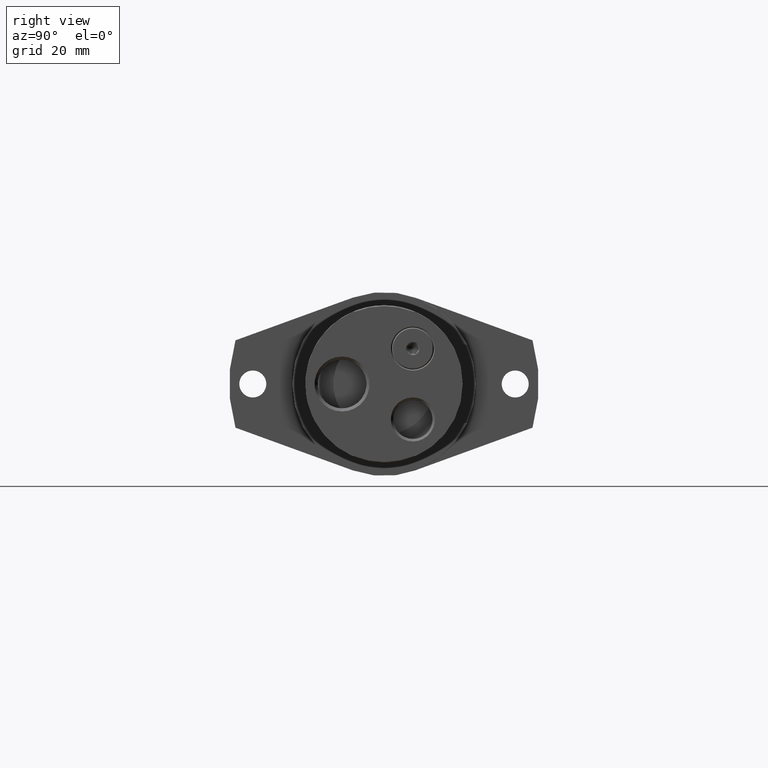
[diagram: clean part render]
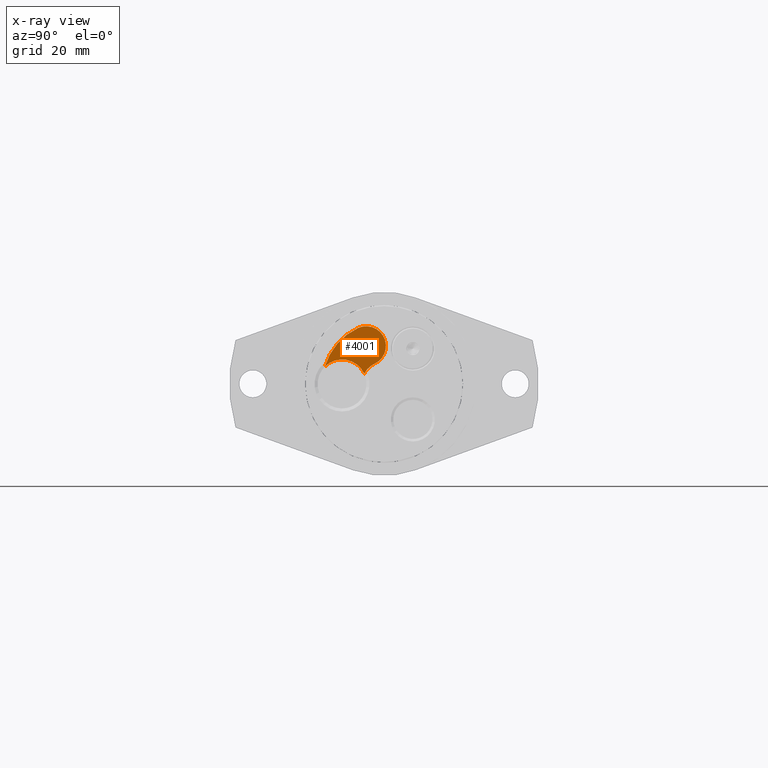
[diagram: x-ray — body ghosted, one internal face saturated and labeled with its STEP entity id]
A machine part, right view, then the same camera in x-ray: the body is ghosted and one INTERNAL B-rep face — a face not visible from any outside direction — is saturated and labeled: STEP entity #4001.
In plain terms, the highlighted planar face has unit normal (1, -0, 0).
Its self-contained STEP definition (entity closure, byte-faithful):
#1125=FACE_OUTER_BOUND('',#1360,.T.);
#1360=EDGE_LOOP('',(#3174,#3175,#3176,#3177));
#1538=CIRCLE('',#4224,9.3155);
#1544=CIRCLE('',#4291,8.5);
#1547=CIRCLE('',#4296,23.5);
#1548=CIRCLE('',#4297,7.5);
#1809=VERTEX_POINT('',#6025);
#1810=VERTEX_POINT('',#6027);
#1883=VERTEX_POINT('',#6407);
#1886=VERTEX_POINT('',#6417);
#2212=EDGE_CURVE('',#1809,#1810,#1538,.T.);
#2348=EDGE_CURVE('',#1883,#1810,#1544,.T.);
#2353=EDGE_CURVE('',#1809,#1886,#1547,.T.);
#2354=EDGE_CURVE('',#1886,#1883,#1548,.T.);
#3174=ORIENTED_EDGE('',*,*,#2212,.F.);
#3175=ORIENTED_EDGE('',*,*,#2353,.T.);
#3176=ORIENTED_EDGE('',*,*,#2354,.T.);
#3177=ORIENTED_EDGE('',*,*,#2348,.T.);
#3847=PLANE('',#4295);
#4001=ADVANCED_FACE('',(#1125),#3847,.F.);
#4224=AXIS2_PLACEMENT_3D('',#6028,#4809,#4810);
#4291=AXIS2_PLACEMENT_3D('',#6408,#5062,#5063);
#4295=AXIS2_PLACEMENT_3D('',#6416,#5072,#5073);
#4296=AXIS2_PLACEMENT_3D('',#6418,#5074,#5075);
#4297=AXIS2_PLACEMENT_3D('',#6419,#5076,#5077);
#4809=DIRECTION('center_axis',(-1.,5.92073210471787E-32,-1.96840097007331E-32));
#4810=DIRECTION('ref_axis',(0.,0.,1.));
#5062=DIRECTION('center_axis',(1.,0.,0.));
#5063=DIRECTION('ref_axis',(0.,-0.422618261740699,-0.90630778703665));
#5072=DIRECTION('center_axis',(1.,-5.92073210471787E-32,1.96840097007331E-32));
#5073=DIRECTION('ref_axis',(1.96840097007331E-32,0.,-1.));
#5074=DIRECTION('center_axis',(-1.,0.,0.));
#5075=DIRECTION('ref_axis',(0.,0.422618261740699,0.90630778703665));
#5076=DIRECTION('center_axis',(-1.,0.,0.));
#5077=DIRECTION('ref_axis',(0.,0.422618261740699,-0.90630778703665));
#6025=CARTESIAN_POINT('',(28.,-22.5459831171875,6.62786883390856));
#6027=CARTESIAN_POINT('',(28.,-7.5459831171875,3.91256166662217));
#6028=CARTESIAN_POINT('Origin',(28.,-16.,0.));
#6407=CARTESIAN_POINT('',(28.,-3.59225522479594,7.70361618981153));
#6408=CARTESIAN_POINT('Origin',(28.,0.,0.));
#6416=CARTESIAN_POINT('Origin',(28.,-10.1385493245098,1.61799273978858E-8));
#6417=CARTESIAN_POINT('',(28.,-9.93152915090643,21.2982329953613));
#6418=CARTESIAN_POINT('Origin',(28.,0.,0.));
#6419=CARTESIAN_POINT('Origin',(28.,-6.76189218785119,14.5009245925864));